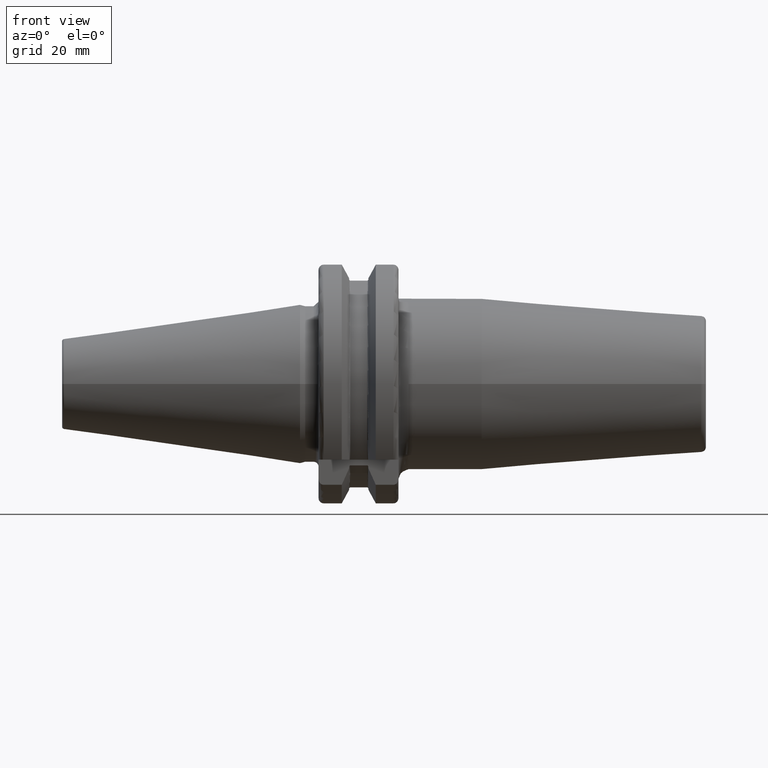
[diagram: clean part render]
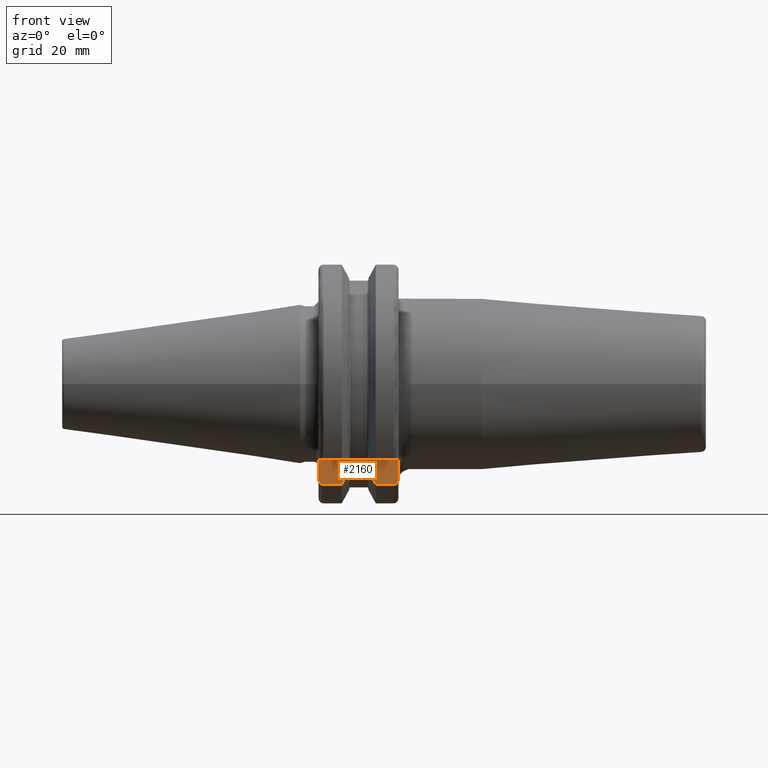
[diagram: same view with one face highlighted and labeled with its STEP entity id]
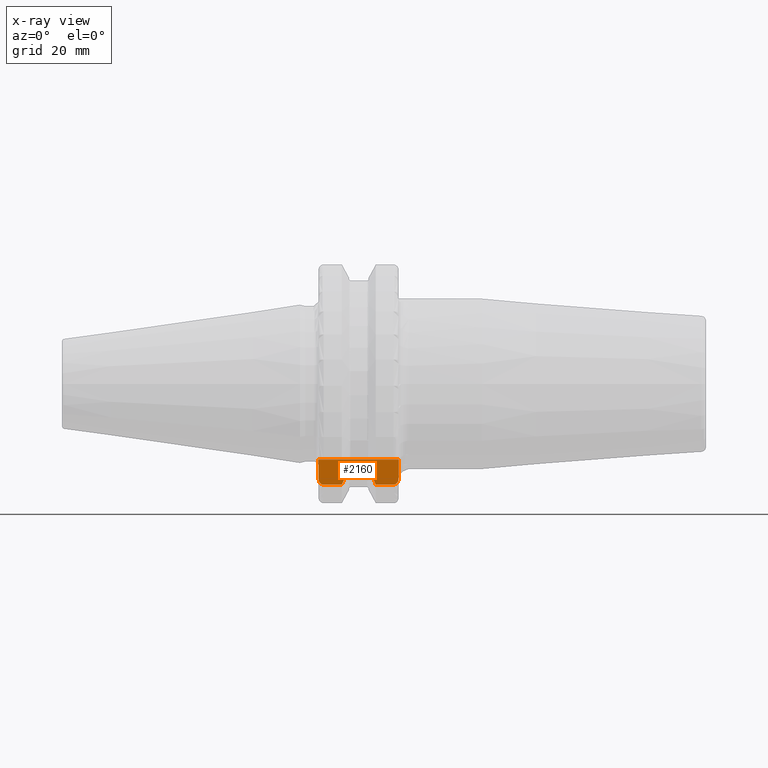
[diagram: x-ray of the same camera — body ghosted, the highlighted face saturated]
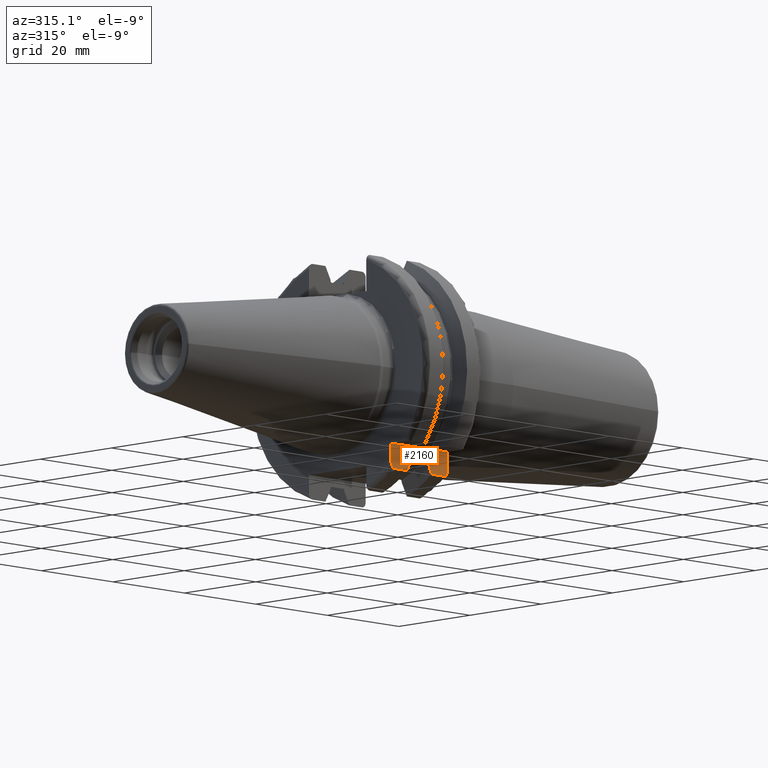
[diagram: same view with one face highlighted and labeled with its STEP entity id]
A machine part, front view. The second image highlights one B-rep face of the part: STEP entity #2160.
The next image is the same camera in x-ray: the body ghosted, the highlighted face saturated — about 0% of this face is hidden behind the body in this view.
A second angle (auxiliary view) of the same face is appended — the face is thin or edge-on in the first view.
In plain terms, the highlighted planar face has unit normal (0, 1, 0).
Its self-contained STEP definition (entity closure, byte-faithful):
#148=DIRECTION('',(0.E0,0.E0,1.E0));
#149=VECTOR('',#148,3.722182030949E0);
#150=CARTESIAN_POINT('',(1.905E1,-1.5E1,-1.872218203095E1));
#151=LINE('',#150,#149);
#366=DIRECTION('',(0.E0,1.405250933806E-14,1.E0));
#367=VECTOR('',#366,2.528170302779E-1);
#368=CARTESIAN_POINT('',(9.2625E0,-1.5E1,-1.672022802897E1));
#369=LINE('',#368,#367);
#391=CARTESIAN_POINT('',(9.5125E0,-1.5E1,-1.612763544355E1));
#392=CARTESIAN_POINT('',(9.485319764203E0,-1.5E1,-1.612763544355E1));
#393=CARTESIAN_POINT('',(9.434159093275E0,-1.5E1,-1.613907255107E1));
#394=CARTESIAN_POINT('',(9.363841904490E0,-1.5E1,-1.618788498585E1));
#395=CARTESIAN_POINT('',(9.309348881506E0,-1.5E1,-1.626059029640E1));
#396=CARTESIAN_POINT('',(9.271636842095E0,-1.5E1,-1.635723700568E1));
#397=CARTESIAN_POINT('',(9.2625E0,-1.5E1,-1.642898280563E1));
#398=CARTESIAN_POINT('',(9.2625E0,-1.5E1,-1.646741099870E1));
#456=DIRECTION('',(1.E0,0.E0,0.E0));
#457=VECTOR('',#456,3.325E0);
#458=CARTESIAN_POINT('',(9.5125E0,-1.5E1,-1.612763544355E1));
#459=LINE('',#458,#457);
#493=CARTESIAN_POINT('',(9.2625E0,-1.5E1,-1.672022802897E1));
#494=CARTESIAN_POINT('',(9.115893915946E0,-1.5E1,-1.706136550118E1));
#495=CARTESIAN_POINT('',(8.812395803002E0,-1.5E1,-1.775824939027E1));
#496=CARTESIAN_POINT('',(8.326546470404E0,-1.5E1,-1.884628422653E1));
#497=CARTESIAN_POINT('',(7.981227775436E0,-1.5E1,-1.960213152439E1));
#498=CARTESIAN_POINT('',(7.803274427933E0,-1.5E1,-1.998749859287E1));
#547=DIRECTION('',(1.E0,0.E0,0.E0));
#548=VECTOR('',#547,3.503274427933E0);
#549=CARTESIAN_POINT('',(1.454672557207E1,-1.5E1,-1.998749859287E1));
#550=LINE('',#549,#548);
#560=DIRECTION('',(1.E0,0.E0,0.E0));
#561=VECTOR('',#560,3.603274427933E0);
#562=CARTESIAN_POINT('',(4.2E0,-1.5E1,-1.998749859287E1));
#563=LINE('',#562,#561);
#633=CARTESIAN_POINT('',(1.30875E1,-1.5E1,-1.672022802897E1));
#634=CARTESIAN_POINT('',(1.323410608405E1,-1.5E1,-1.706136550118E1));
#635=CARTESIAN_POINT('',(1.353760419700E1,-1.5E1,-1.775824939027E1));
#636=CARTESIAN_POINT('',(1.402345352960E1,-1.5E1,-1.884628422653E1));
#637=CARTESIAN_POINT('',(1.436877222456E1,-1.5E1,-1.960213152439E1));
#638=CARTESIAN_POINT('',(1.454672557207E1,-1.5E1,-1.998749859287E1));
#695=DIRECTION('',(0.E0,1.405250933806E-14,1.E0));
#696=VECTOR('',#695,2.528170302779E-1);
#697=CARTESIAN_POINT('',(1.30875E1,-1.5E1,-1.672022802897E1));
#698=LINE('',#697,#696);
#720=CARTESIAN_POINT('',(1.30875E1,-1.5E1,-1.646741099870E1));
#721=CARTESIAN_POINT('',(1.30875E1,-1.5E1,-1.642892493959E1));
#722=CARTESIAN_POINT('',(1.307834320642E1,-1.5E1,-1.635707884332E1));
#723=CARTESIAN_POINT('',(1.304047013191E1,-1.5E1,-1.626022371116E1));
#724=CARTESIAN_POINT('',(1.298583434978E1,-1.5E1,-1.618756583044E1));
#725=CARTESIAN_POINT('',(1.291551874431E1,-1.5E1,-1.613895469216E1));
#726=CARTESIAN_POINT('',(1.286454608147E1,-1.5E1,-1.612763544355E1));
#727=CARTESIAN_POINT('',(1.28375E1,-1.5E1,-1.612763544355E1));
#782=DIRECTION('',(-1.E0,0.E0,0.E0));
#783=VECTOR('',#782,1.585E1);
#784=CARTESIAN_POINT('',(1.905E1,-1.5E1,-1.5E1));
#785=LINE('',#784,#783);
#797=CARTESIAN_POINT('',(1.905E1,-1.5E1,-1.872218203095E1));
#798=CARTESIAN_POINT('',(1.905E1,-1.5E1,-1.882531961591E1));
#799=CARTESIAN_POINT('',(1.903142862941E1,-1.5E1,-1.902754004826E1));
#800=CARTESIAN_POINT('',(1.894096611135E1,-1.5E1,-1.933120451835E1));
#801=CARTESIAN_POINT('',(1.878989656846E1,-1.5E1,-1.959775567536E1));
#802=CARTESIAN_POINT('',(1.858668103952E1,-1.5E1,-1.980969282940E1));
#803=CARTESIAN_POINT('',(1.833646124043E1,-1.5E1,-1.995163473359E1));
#804=CARTESIAN_POINT('',(1.814949720993E1,-1.5E1,-1.998749859287E1));
#805=CARTESIAN_POINT('',(1.805E1,-1.5E1,-1.998749859287E1));
#890=CARTESIAN_POINT('',(4.2E0,-1.5E1,-1.998749859287E1));
#891=CARTESIAN_POINT('',(4.100373079407E0,-1.5E1,-1.998749859287E1));
#892=CARTESIAN_POINT('',(3.913267153715E0,-1.5E1,-1.995135654241E1));
#893=CARTESIAN_POINT('',(3.664838575118E0,-1.5E1,-1.981080390223E1));
#894=CARTESIAN_POINT('',(3.460373015108E0,-1.5E1,-1.959833355505E1));
#895=CARTESIAN_POINT('',(3.309109014669E0,-1.5E1,-1.933138839442E1));
#896=CARTESIAN_POINT('',(3.218557899741E0,-1.5E1,-1.902753753660E1));
#897=CARTESIAN_POINT('',(3.2E0,-1.5E1,-1.882529934064E1));
#898=CARTESIAN_POINT('',(3.2E0,-1.5E1,-1.872218203095E1));
#992=DIRECTION('',(0.E0,0.E0,1.E0));
#993=VECTOR('',#992,3.722182030949E0);
#994=CARTESIAN_POINT('',(3.2E0,-1.5E1,-1.872218203095E1));
#995=LINE('',#994,#993);
#1305=CARTESIAN_POINT('',(9.2625E0,-1.5E1,-1.672022802897E1));
#1306=CARTESIAN_POINT('',(9.2625E0,-1.5E1,-1.646741099870E1));
#1307=VERTEX_POINT('',#1305);
#1308=VERTEX_POINT('',#1306);
#1333=CARTESIAN_POINT('',(1.30875E1,-1.5E1,-1.672022802897E1));
#1334=CARTESIAN_POINT('',(1.30875E1,-1.5E1,-1.646741099870E1));
#1335=VERTEX_POINT('',#1333);
#1336=VERTEX_POINT('',#1334);
#1347=VERTEX_POINT('',#391);
#1353=CARTESIAN_POINT('',(1.28375E1,-1.5E1,-1.612763544355E1));
#1354=VERTEX_POINT('',#1353);
#1359=VERTEX_POINT('',#638);
#1363=VERTEX_POINT('',#498);
#1373=CARTESIAN_POINT('',(1.905E1,-1.5E1,-1.872218203095E1));
#1374=CARTESIAN_POINT('',(1.905E1,-1.5E1,-1.5E1));
#1375=VERTEX_POINT('',#1373);
#1376=VERTEX_POINT('',#1374);
#1407=CARTESIAN_POINT('',(3.2E0,-1.5E1,-1.872218203095E1));
#1408=CARTESIAN_POINT('',(3.2E0,-1.5E1,-1.5E1));
#1409=VERTEX_POINT('',#1407);
#1410=VERTEX_POINT('',#1408);
#1421=CARTESIAN_POINT('',(4.2E0,-1.5E1,-1.998749859287E1));
#1422=VERTEX_POINT('',#1421);
#1423=CARTESIAN_POINT('',(1.805E1,-1.5E1,-1.998749859287E1));
#1424=VERTEX_POINT('',#1423);
#2129=CARTESIAN_POINT('',(1.905E1,-1.5E1,-2.5E1));
#2130=DIRECTION('',(0.E0,1.E0,0.E0));
#2131=DIRECTION('',(0.E0,0.E0,1.E0));
#2132=AXIS2_PLACEMENT_3D('',#2129,#2130,#2131);
#2133=PLANE('',#2132);
#2134=ORIENTED_EDGE('',*,*,#1989,.F.);
#2136=ORIENTED_EDGE('',*,*,#2135,.T.);
#2138=ORIENTED_EDGE('',*,*,#2137,.F.);
#2140=ORIENTED_EDGE('',*,*,#2139,.T.);
#2142=ORIENTED_EDGE('',*,*,#2141,.T.);
#2144=ORIENTED_EDGE('',*,*,#2143,.F.);
#2145=ORIENTED_EDGE('',*,*,#1711,.F.);
#2147=ORIENTED_EDGE('',*,*,#2146,.T.);
#2149=ORIENTED_EDGE('',*,*,#2148,.F.);
#2151=ORIENTED_EDGE('',*,*,#2150,.F.);
#2153=ORIENTED_EDGE('',*,*,#2152,.T.);
#2155=ORIENTED_EDGE('',*,*,#2154,.T.);
#2156=ORIENTED_EDGE('',*,*,#2094,.F.);
#2157=ORIENTED_EDGE('',*,*,#2020,.T.);
#2158=EDGE_LOOP('',(#2134,#2136,#2138,#2140,#2142,#2144,#2145,#2147,#2149,#2151,
#2153,#2155,#2156,#2157));
#2159=FACE_OUTER_BOUND('',#2158,.F.);
#2160=ADVANCED_FACE('',(#2159),#2133,.F.);
#399=B_SPLINE_CURVE_WITH_KNOTS('',3,(#391,#392,#393,#394,#395,#396,#397,#398),
.UNSPECIFIED.,.F.,.F.,(4,1,1,1,1,4),(0.E0,2.E-1,4.E-1,6.E-1,8.E-1,1.E0),
.UNSPECIFIED.);
#499=B_SPLINE_CURVE_WITH_KNOTS('',3,(#493,#494,#495,#496,#497,#498),
.UNSPECIFIED.,.F.,.F.,(4,1,1,4),(0.E0,3.333333333333E-1,6.666666666667E-1,1.E0),
.UNSPECIFIED.);
#639=B_SPLINE_CURVE_WITH_KNOTS('',3,(#633,#634,#635,#636,#637,#638),
.UNSPECIFIED.,.F.,.F.,(4,1,1,4),(0.E0,3.333333333333E-1,6.666666666667E-1,1.E0),
.UNSPECIFIED.);
#728=B_SPLINE_CURVE_WITH_KNOTS('',3,(#720,#721,#722,#723,#724,#725,#726,#727),
.UNSPECIFIED.,.F.,.F.,(4,1,1,1,1,4),(0.E0,2.E-1,4.E-1,6.E-1,8.E-1,1.E0),
.UNSPECIFIED.);
#806=B_SPLINE_CURVE_WITH_KNOTS('',3,(#797,#798,#799,#800,#801,#802,#803,#804,
#805),.UNSPECIFIED.,.F.,.F.,(4,1,1,1,1,1,4),(0.E0,1.666666666667E-1,
3.333333333333E-1,5.E-1,6.666666666667E-1,8.333333333333E-1,1.E0),
.UNSPECIFIED.);
#899=B_SPLINE_CURVE_WITH_KNOTS('',3,(#890,#891,#892,#893,#894,#895,#896,#897,
#898),.UNSPECIFIED.,.F.,.F.,(4,1,1,1,1,1,4),(0.E0,1.666666666667E-1,
3.333333333333E-1,5.E-1,6.666666666667E-1,8.333333333333E-1,1.E0),
.UNSPECIFIED.);
#1711=EDGE_CURVE('',#1375,#1376,#151,.T.);
#1989=EDGE_CURVE('',#1307,#1308,#369,.T.);
#2020=EDGE_CURVE('',#1347,#1308,#399,.T.);
#2094=EDGE_CURVE('',#1347,#1354,#459,.T.);
#2135=EDGE_CURVE('',#1307,#1363,#499,.T.);
#2137=EDGE_CURVE('',#1422,#1363,#563,.T.);
#2139=EDGE_CURVE('',#1422,#1409,#899,.T.);
#2141=EDGE_CURVE('',#1409,#1410,#995,.T.);
#2143=EDGE_CURVE('',#1376,#1410,#785,.T.);
#2146=EDGE_CURVE('',#1375,#1424,#806,.T.);
#2148=EDGE_CURVE('',#1359,#1424,#550,.T.);
#2150=EDGE_CURVE('',#1335,#1359,#639,.T.);
#2152=EDGE_CURVE('',#1335,#1336,#698,.T.);
#2154=EDGE_CURVE('',#1336,#1354,#728,.T.);